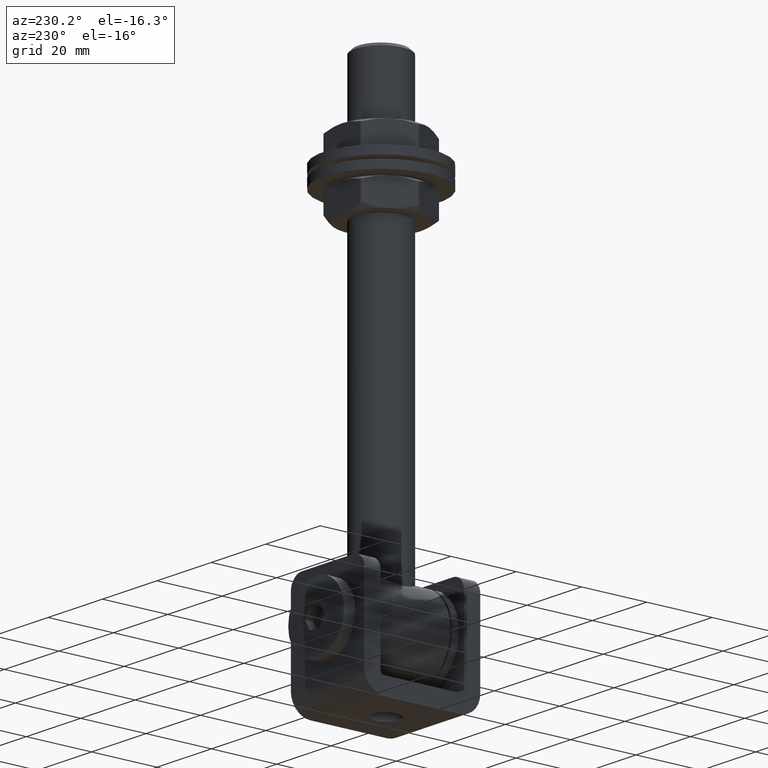
[diagram: clean part render]
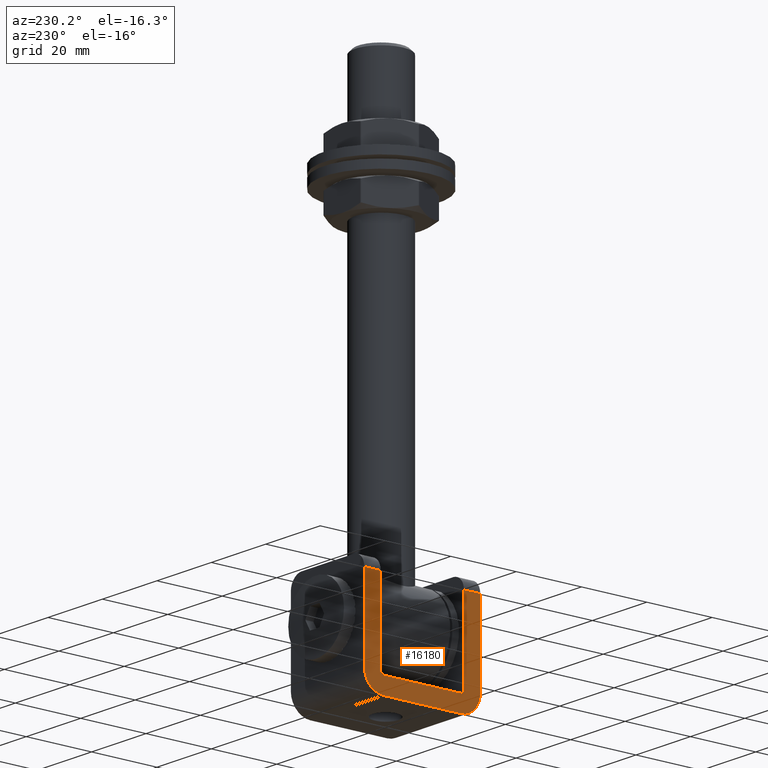
[diagram: same view with one face highlighted and labeled with its STEP entity id]
A machine part, auxiliary view. The second image highlights one B-rep face of the part: STEP entity #16180.
In plain terms, the highlighted planar face has unit normal (1, 0, 0).
Its self-contained STEP definition (entity closure, byte-faithful):
#61 = VERTEX_POINT ( 'NONE', #11286 ) ;
#201 = CARTESIAN_POINT ( 'NONE',  ( -13.50000000000000000, 0.000000000000000000, 10.75000000000000000 ) ) ;
#615 = DIRECTION ( 'NONE',  ( -0.000000000000000000, 1.000000000000000000, -3.469446951953611231E-16 ) ) ;
#1086 = AXIS2_PLACEMENT_3D ( 'NONE', #10402, #5152, #20848 ) ;
#1088 = LINE ( 'NONE', #201, #13838 ) ;
#1100 = CARTESIAN_POINT ( 'NONE',  ( -13.50000000000000000, -11.74999999999999645, -14.75000000000000178 ) ) ;
#1230 = EDGE_CURVE ( 'NONE', #1576, #61, #19377, .T. ) ;
#1423 = DIRECTION ( 'NONE',  ( 0.000000000000000000, 0.000000000000000000, 1.000000000000000000 ) ) ;
#1425 = CARTESIAN_POINT ( 'NONE',  ( -13.50000000000000000, 12.74999999999999822, 10.75000000000000178 ) ) ;
#1576 = VERTEX_POINT ( 'NONE', #16867 ) ;
#1860 = LINE ( 'NONE', #1954, #10283 ) ;
#1948 = DIRECTION ( 'NONE',  ( 0.000000000000000000, -8.673617379884035472E-16, -1.000000000000000000 ) ) ;
#1954 = CARTESIAN_POINT ( 'NONE',  ( -13.50000000000000000, -17.75000000000000000, -19.75000000000001421 ) ) ;
#2737 = DIRECTION ( 'NONE',  ( 1.000000000000000000, 0.000000000000000000, 0.000000000000000000 ) ) ;
#2928 = EDGE_CURVE ( 'NONE', #15633, #61, #10125, .T. ) ;
#3311 = VERTEX_POINT ( 'NONE', #1425 ) ;
#3924 = CARTESIAN_POINT ( 'NONE',  ( -13.50000000000000000, -17.75000000000000000, -13.75000000000001243 ) ) ;
#4639 = DIRECTION ( 'NONE',  ( 0.000000000000000000, 0.000000000000000000, -1.000000000000000000 ) ) ;
#4859 = ORIENTED_EDGE ( 'NONE', *, *, #14691, .T. ) ;
#4889 = EDGE_CURVE ( 'NONE', #20209, #18847, #20325, .T. ) ;
#5021 = ORIENTED_EDGE ( 'NONE', *, *, #1230, .T. ) ;
#5152 = DIRECTION ( 'NONE',  ( 1.000000000000000000, 0.000000000000000000, 0.000000000000000000 ) ) ;
#5340 = EDGE_CURVE ( 'NONE', #20209, #19496, #20577, .T. ) ;
#5650 = CIRCLE ( 'NONE', #17044, 5.999999999999998224 ) ;
#6130 = DIRECTION ( 'NONE',  ( -0.000000000000000000, -0.000000000000000000, 1.000000000000000000 ) ) ;
#6176 = VECTOR ( 'NONE', #14745, 1000.000000000000000 ) ;
#6222 = CARTESIAN_POINT ( 'NONE',  ( -13.50000000000000000, 12.74999999999999822, 14.75000000000000178 ) ) ;
#7206 = CARTESIAN_POINT ( 'NONE',  ( -13.50000000000000000, -12.74999999999999822, -13.75000000000000178 ) ) ;
#7254 = ORIENTED_EDGE ( 'NONE', *, *, #2928, .F. ) ;
#7267 = VECTOR ( 'NONE', #6130, 1000.000000000000000 ) ;
#7570 = ORIENTED_EDGE ( 'NONE', *, *, #13866, .T. ) ;
#7577 = EDGE_CURVE ( 'NONE', #1576, #16137, #12964, .T. ) ;
#8006 = DIRECTION ( 'NONE',  ( 1.000000000000000000, 0.000000000000000000, 0.000000000000000000 ) ) ;
#8181 = CARTESIAN_POINT ( 'NONE',  ( -13.50000000000000000, 11.74999999999999645, -14.75000000000000178 ) ) ;
#8407 = CARTESIAN_POINT ( 'NONE',  ( -13.50000000000000000, -11.74999999999999289, -19.75000000000001066 ) ) ;
#8871 = ORIENTED_EDGE ( 'NONE', *, *, #7577, .F. ) ;
#8937 = CARTESIAN_POINT ( 'NONE',  ( -13.50000000000000000, 12.74999999999999822, -13.74999999999999645 ) ) ;
#9475 = PLANE ( 'NONE',  #21107 ) ;
#9517 = DIRECTION ( 'NONE',  ( -1.000000000000000000, -0.000000000000000000, -0.000000000000000000 ) ) ;
#9692 = ORIENTED_EDGE ( 'NONE', *, *, #5340, .T. ) ;
#9703 = DIRECTION ( 'NONE',  ( 0.000000000000000000, 0.000000000000000000, -1.000000000000000000 ) ) ;
#9966 = LINE ( 'NONE', #6222, #6176 ) ;
#10125 = LINE ( 'NONE', #18489, #18791 ) ;
#10213 = AXIS2_PLACEMENT_3D ( 'NONE', #18459, #8006, #11574 ) ;
#10283 = VECTOR ( 'NONE', #17641, 1000.000000000000000 ) ;
#10402 = CARTESIAN_POINT ( 'NONE',  ( -13.50000000000000000, 11.74999999999999645, -13.75000000000000178 ) ) ;
#10717 = DIRECTION ( 'NONE',  ( -1.000000000000000000, -0.000000000000000000, -0.000000000000000000 ) ) ;
#10976 = EDGE_CURVE ( 'NONE', #15633, #17041, #5650, .T. ) ;
#11041 = EDGE_CURVE ( 'NONE', #3311, #19496, #9966, .T. ) ;
#11258 = CARTESIAN_POINT ( 'NONE',  ( -13.50000000000000000, -11.74999999999999645, -13.75000000000001243 ) ) ;
#11286 = CARTESIAN_POINT ( 'NONE',  ( -13.50000000000000000, 11.75000000000000000, -19.75000000000000711 ) ) ;
#11568 = CARTESIAN_POINT ( 'NONE',  ( -13.50000000000000000, 12.74999999999999822, -14.75000000000000178 ) ) ;
#11574 = DIRECTION ( 'NONE',  ( 0.000000000000000000, 0.000000000000000000, -1.000000000000000000 ) ) ;
#11600 = DIRECTION ( 'NONE',  ( -0.000000000000000000, 1.000000000000000000, 2.931927001650941853E-16 ) ) ;
#12726 = LINE ( 'NONE', #13501, #14580 ) ;
#12892 = EDGE_CURVE ( 'NONE', #3311, #16137, #1088, .T. ) ;
#12964 = LINE ( 'NONE', #14232, #7267 ) ;
#13018 = VECTOR ( 'NONE', #615, 1000.000000000000000 ) ;
#13133 = DIRECTION ( 'NONE',  ( -0.000000000000000000, 1.000000000000000000, -0.000000000000000000 ) ) ;
#13501 = CARTESIAN_POINT ( 'NONE',  ( -13.50000000000000000, -12.74999999999999822, -14.75000000000000178 ) ) ;
#13764 = EDGE_CURVE ( 'NONE', #20582, #17041, #1860, .T. ) ;
#13785 = FACE_OUTER_BOUND ( 'NONE', #22407, .T. ) ;
#13838 = VECTOR ( 'NONE', #13133, 1000.000000000000000 ) ;
#13866 = EDGE_CURVE ( 'NONE', #16526, #18847, #20825, .T. ) ;
#14100 = LINE ( 'NONE', #14198, #13018 ) ;
#14198 = CARTESIAN_POINT ( 'NONE',  ( -13.50000000000000000, 3.729655473350130520E-15, 10.74999999999999645 ) ) ;
#14223 = CARTESIAN_POINT ( 'NONE',  ( -13.50000000000000000, 11.74999999999999822, -13.75000000000000711 ) ) ;
#14232 = CARTESIAN_POINT ( 'NONE',  ( -13.50000000000000000, 17.75000000000000000, 14.75000000000000178 ) ) ;
#14580 = VECTOR ( 'NONE', #1423, 1000.000000000000000 ) ;
#14639 = CARTESIAN_POINT ( 'NONE',  ( -13.50000000000000000, 0.000000000000000000, 0.000000000000000000 ) ) ;
#14691 = EDGE_CURVE ( 'NONE', #20582, #20501, #14100, .T. ) ;
#14745 = DIRECTION ( 'NONE',  ( 0.000000000000000000, 0.000000000000000000, -1.000000000000000000 ) ) ;
#15038 = DIRECTION ( 'NONE',  ( 0.000000000000000000, -1.000000000000000000, 0.000000000000000000 ) ) ;
#15630 = EDGE_CURVE ( 'NONE', #16526, #20501, #12726, .T. ) ;
#15633 = VERTEX_POINT ( 'NONE', #8407 ) ;
#15862 = CARTESIAN_POINT ( 'NONE',  ( -13.50000000000000000, -12.74999999999999822, 10.74999999999999467 ) ) ;
#16137 = VERTEX_POINT ( 'NONE', #19771 ) ;
#16180 = ADVANCED_FACE ( 'NONE', ( #13785 ), #9475, .F. ) ;
#16296 = AXIS2_PLACEMENT_3D ( 'NONE', #14223, #10717, #1948 ) ;
#16378 = CARTESIAN_POINT ( 'NONE',  ( -13.50000000000000000, -17.75000000000000355, 10.75000000000000178 ) ) ;
#16490 = ORIENTED_EDGE ( 'NONE', *, *, #4889, .F. ) ;
#16526 = VERTEX_POINT ( 'NONE', #7206 ) ;
#16792 = ORIENTED_EDGE ( 'NONE', *, *, #10976, .T. ) ;
#16867 = CARTESIAN_POINT ( 'NONE',  ( -13.50000000000000000, 17.75000000000000000, -13.75000000000000711 ) ) ;
#17041 = VERTEX_POINT ( 'NONE', #3924 ) ;
#17044 = AXIS2_PLACEMENT_3D ( 'NONE', #11258, #9517, #4639 ) ;
#17294 = ORIENTED_EDGE ( 'NONE', *, *, #12892, .T. ) ;
#17641 = DIRECTION ( 'NONE',  ( -0.000000000000000000, 1.005636797667713793E-16, -1.000000000000000000 ) ) ;
#18459 = CARTESIAN_POINT ( 'NONE',  ( -13.50000000000000000, -11.74999999999999645, -13.75000000000000178 ) ) ;
#18489 = CARTESIAN_POINT ( 'NONE',  ( -13.50000000000000000, 17.75000000000000000, -19.75000000000000355 ) ) ;
#18791 = VECTOR ( 'NONE', #11600, 1000.000000000000000 ) ;
#18796 = ORIENTED_EDGE ( 'NONE', *, *, #15630, .F. ) ;
#18847 = VERTEX_POINT ( 'NONE', #1100 ) ;
#19209 = ORIENTED_EDGE ( 'NONE', *, *, #13764, .F. ) ;
#19377 = CIRCLE ( 'NONE', #16296, 6.000000000000000000 ) ;
#19496 = VERTEX_POINT ( 'NONE', #8937 ) ;
#19771 = CARTESIAN_POINT ( 'NONE',  ( -13.50000000000000000, 17.75000000000000000, 10.75000000000000000 ) ) ;
#20065 = VECTOR ( 'NONE', #15038, 1000.000000000000000 ) ;
#20209 = VERTEX_POINT ( 'NONE', #8181 ) ;
#20325 = LINE ( 'NONE', #11568, #20065 ) ;
#20501 = VERTEX_POINT ( 'NONE', #15862 ) ;
#20577 = CIRCLE ( 'NONE', #1086, 1.000000000000000888 ) ;
#20582 = VERTEX_POINT ( 'NONE', #16378 ) ;
#20825 = CIRCLE ( 'NONE', #10213, 1.000000000000000888 ) ;
#20848 = DIRECTION ( 'NONE',  ( 0.000000000000000000, 0.000000000000000000, -1.000000000000000000 ) ) ;
#21107 = AXIS2_PLACEMENT_3D ( 'NONE', #14639, #2737, #9703 ) ;
#22031 = ORIENTED_EDGE ( 'NONE', *, *, #11041, .F. ) ;
#22407 = EDGE_LOOP ( 'NONE', ( #19209, #4859, #18796, #7570, #16490, #9692, #22031, #17294, #8871, #5021, #7254, #16792 ) ) ;